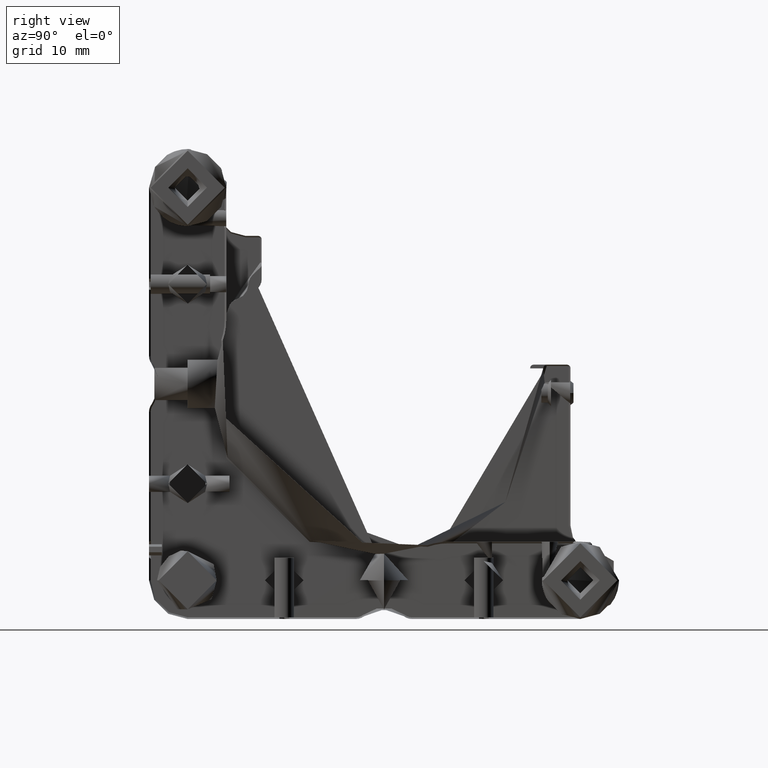
[diagram: clean part render]
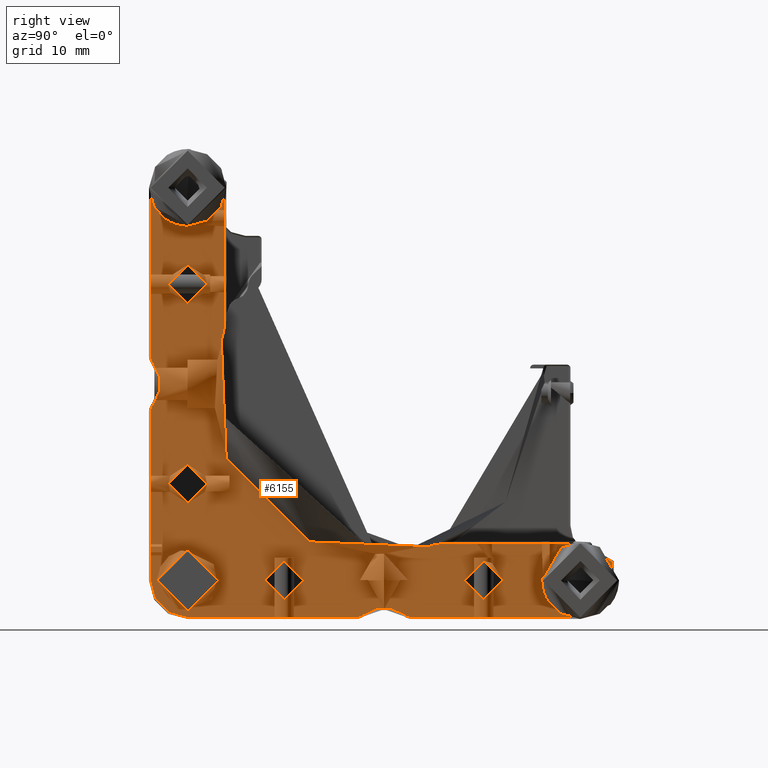
[diagram: same view with one face highlighted and labeled with its STEP entity id]
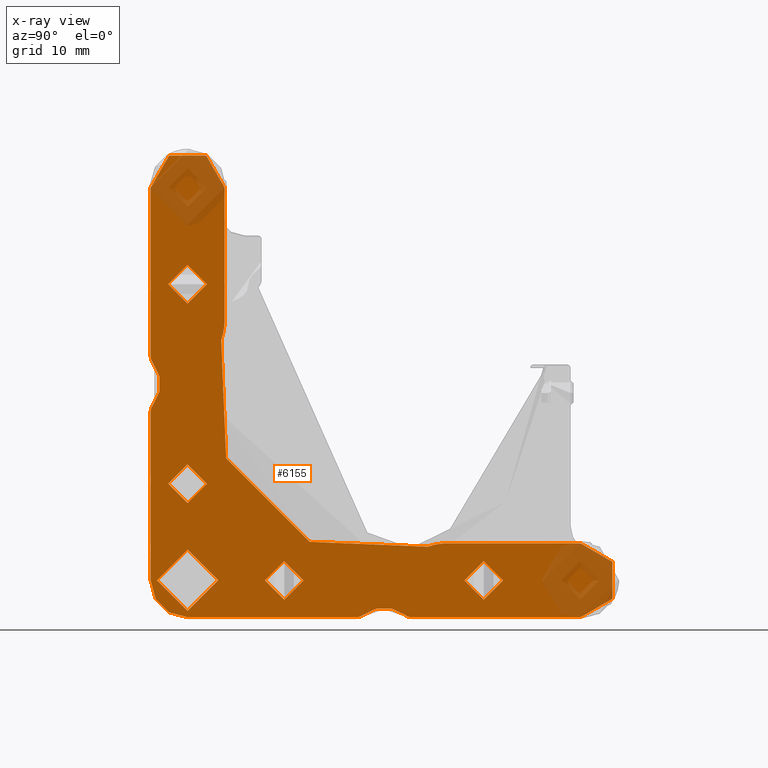
[diagram: x-ray of the same camera — body ghosted, the highlighted face saturated]
A machine part, right view. The second image highlights one B-rep face of the part: STEP entity #6155.
The next image is the same camera in x-ray: the body ghosted, the highlighted face saturated — about 11% of this face is hidden behind the body in this view.
In plain terms, the highlighted planar face has unit normal (1, -0, 0).
Its self-contained STEP definition (entity closure, byte-faithful):
#3 = LINE ( 'NONE', #9971, #5030 ) ;
#27 = CARTESIAN_POINT ( 'NONE',  ( 14.52438067708580149, -32.42127100858853339, 87.25000000000004263 ) ) ;
#100 = CARTESIAN_POINT ( 'NONE',  ( 14.52438067708579972, -34.28089811722144731, 78.43816129198630449 ) ) ;
#116 = ORIENTED_EDGE ( 'NONE', *, *, #3316, .F. ) ;
#143 = DIRECTION ( 'NONE',  ( -1.000000000000000000, -0.000000000000000000, -0.000000000000000000 ) ) ;
#151 = CARTESIAN_POINT ( 'NONE',  ( 14.52438067708579794, 30.89624606253330086, 25.93028193245020319 ) ) ;
#162 = EDGE_CURVE ( 'NONE', #552, #13583, #11069, .T. ) ;
#170 = CARTESIAN_POINT ( 'NONE',  ( 14.52438067708580327, -34.28212187281282297, 86.56348452869345067 ) ) ;
#173 = CARTESIAN_POINT ( 'NONE',  ( 14.52438067707362279, -37.56707137691365972, 21.50000000000000000 ) ) ;
#207 = AXIS2_PLACEMENT_3D ( 'NONE', #10750, #5321, #896 ) ;
#211 = CARTESIAN_POINT ( 'NONE',  ( 14.52438067708579972, -30.03133016282161094, 78.09840876550269684 ) ) ;
#221 = DIRECTION ( 'NONE',  ( 0.000000000000000000, 1.000000000000000000, 0.000000000000000000 ) ) ;
#230 = CARTESIAN_POINT ( 'NONE',  ( 14.52438067708580327, 32.42588830467631311, 18.02541900290477628 ) ) ;
#249 = CARTESIAN_POINT ( 'NONE',  ( 14.52438067708579972, -31.81707137695324761, 77.74999999999998579 ) ) ;
#283 = CARTESIAN_POINT ( 'NONE',  ( 14.52438067708579617, -29.81049284484125295, 78.19330020206459153 ) ) ;
#291 = CARTESIAN_POINT ( 'NONE',  ( 14.52438067708840563, 1.930523887229223190, 16.12500000004740031 ) ) ;
#297 = CARTESIAN_POINT ( 'NONE',  ( 14.52438067708579794, 29.78712825463695424, 16.75000000000000000 ) ) ;
#313 = CARTESIAN_POINT ( 'NONE',  ( 14.52438067708580149, -33.93277941437010981, 78.24185982432172182 ) ) ;
#324 = CARTESIAN_POINT ( 'NONE',  ( 14.52438067708579972, 24.79657562063133014, 19.67714565097782398 ) ) ;
#375 = CARTESIAN_POINT ( 'NONE',  ( 14.52438067705544356, -26.06707137693598497, 82.49999999999998579 ) ) ;
#393 = CARTESIAN_POINT ( 'NONE',  ( 14.52438067708580327, 24.78133738855267509, 19.71425878586192226 ) ) ;
#424 = VECTOR ( 'NONE', #1031, 1000.000000000000000 ) ;
#438 = CARTESIAN_POINT ( 'NONE',  ( 14.52438067708579794, 32.97086855717046205, 24.36724959734470630 ) ) ;
#466 = CARTESIAN_POINT ( 'NONE',  ( 14.52438067708579972, 27.41693395214842610, 25.90954639733917730 ) ) ;
#507 = CARTESIAN_POINT ( 'NONE',  ( 14.52438067708579794, 33.61321470231298036, 19.78669303848509742 ) ) ;
#535 = CARTESIAN_POINT ( 'NONE',  ( 14.52438067708579972, 29.18292862304677016, 26.24999999999999645 ) ) ;
#552 = VERTEX_POINT ( 'NONE', #573 ) ;
#573 = CARTESIAN_POINT ( 'NONE',  ( 14.52438067705688951, -37.56707137698212051, 47.66987298107795823 ) ) ;
#578 = VERTEX_POINT ( 'NONE', #13097 ) ;
#600 = CARTESIAN_POINT ( 'NONE',  ( 14.52438067708579794, 26.05581898533278107, 17.90964773134379584 ) ) ;
#673 = VERTEX_POINT ( 'NONE', #12849 ) ;
#721 = CARTESIAN_POINT ( 'NONE',  ( 14.52438067708580149, -30.13894796878306437, 86.94374374582075404 ) ) ;
#789 = CARTESIAN_POINT ( 'NONE',  ( 14.52438067708579972, -28.68996173924031368, 86.09035226865100299 ) ) ;
#829 = VERTEX_POINT ( 'NONE', #3343 ) ;
#893 = FACE_BOUND ( 'NONE', #3791, .T. ) ;
#896 = DIRECTION ( 'NONE',  ( 0.000000000000000000, 0.000000000000000000, 1.000000000000000000 ) ) ;
#924 = CARTESIAN_POINT ( 'NONE',  ( 14.52438067708579794, -29.70136333952453001, 86.75814017567357439 ) ) ;
#939 = CARTESIAN_POINT ( 'NONE',  ( 14.52438067708579972, 31.71362795205095964, 25.52053226614504666 ) ) ;
#963 = CARTESIAN_POINT ( 'NONE',  ( 14.52438067708579972, -1.317071376953222739, 52.00000000000001421 ) ) ;
#1010 = VERTEX_POINT ( 'NONE', #5151 ) ;
#1031 = DIRECTION ( 'NONE',  ( -0.000000000000000000, -1.000000000000000000, -0.000000000000000000 ) ) ;
#1059 = EDGE_LOOP ( 'NONE', ( #14114 ) ) ;
#1109 = DIRECTION ( 'NONE',  ( -1.000000000000000000, 0.000000000000000000, -0.000000000000000000 ) ) ;
#1162 = CARTESIAN_POINT ( 'NONE',  ( 14.52438067708579794, -33.60281259109380159, 86.90159123449259937 ) ) ;
#1182 = CIRCLE ( 'NONE', #10686, 9.749999999999971578 ) ;
#1237 = CARTESIAN_POINT ( 'NONE',  ( 14.52438067708579972, -33.71461188150238542, 78.14251044732405660 ) ) ;
#1272 = CARTESIAN_POINT ( 'NONE',  ( 14.52438067708579972, -28.94982177962471681, 78.71206006586373860 ) ) ;
#1289 = CARTESIAN_POINT ( 'NONE',  ( 14.52438067708579794, 33.56928162546453365, 23.32285434901667998 ) ) ;
#1290 = ORIENTED_EDGE ( 'NONE', *, *, #3420, .F. ) ;
#1306 = CARTESIAN_POINT ( 'NONE',  ( 14.52438067708580505, -33.00408763206149843, 87.13883147668222762 ) ) ;
#1348 = CARTESIAN_POINT ( 'NONE',  ( 14.52438067708579972, -31.21287174536507791, 77.74999999999998579 ) ) ;
#1365 = CARTESIAN_POINT ( 'NONE',  ( 14.52438067708580149, 31.00578297206387290, 17.11364699758141583 ) ) ;
#1382 = CARTESIAN_POINT ( 'NONE',  ( 14.52438067708580327, -36.07521155261447632, 84.61570803745036073 ) ) ;
#1391 = CARTESIAN_POINT ( 'NONE',  ( 14.52438067708579972, -31.81707137695323340, 36.50000000000002842 ) ) ;
#1395 = CARTESIAN_POINT ( 'NONE',  ( 14.52438067708579617, 26.85725568023501353, 17.35747229274185344 ) ) ;
#1435 = CARTESIAN_POINT ( 'NONE',  ( 14.52438067708579794, 33.93296232415456615, 21.19816371060814575 ) ) ;
#1450 = CARTESIAN_POINT ( 'NONE',  ( 14.52438067708579972, -33.82364990911344194, 86.80669979790981472 ) ) ;
#1451 = EDGE_CURVE ( 'NONE', #578, #7263, #3742, .T. ) ;
#1463 = CARTESIAN_POINT ( 'NONE',  ( 14.52438067708580327, 27.28538811848415335, 17.14251044733113005 ) ) ;
#1506 = CARTESIAN_POINT ( 'NONE',  ( 14.52438067708579972, 32.77328089169596126, 18.37289036228215622 ) ) ;
#1533 = CARTESIAN_POINT ( 'NONE',  ( 14.52438067708579972, 27.36007427402961412, 25.88635300241791271 ) ) ;
#1607 = CARTESIAN_POINT ( 'NONE',  ( 14.52438067708579972, 26.92487455903395599, 25.68439713548721670 ) ) ;
#1611 = AXIS2_PLACEMENT_3D ( 'NONE', #6083, #10494, #3692 ) ;
#1617 = EDGE_CURVE ( 'NONE', #2817, #1010, #1182, .T. ) ;
#1678 = CARTESIAN_POINT ( 'NONE',  ( 14.52438067708580505, 28.43600986276327447, 16.79168819624419129 ) ) ;
#1774 = CARTESIAN_POINT ( 'NONE',  ( 14.52438067708579972, -31.81707137695323340, 33.50000000000002842 ) ) ;
#1806 = CIRCLE ( 'NONE', #207, 1.749999999958617991 ) ;
#1845 = CARTESIAN_POINT ( 'NONE',  ( 14.52438067708579794, -32.11899282064854333, 77.74999999999997158 ) ) ;
#1857 = CARTESIAN_POINT ( 'NONE',  ( 14.52438067707362279, 29.18292862304677016, 15.75000000003957901 ) ) ;
#1929 = AXIS2_PLACEMENT_3D ( 'NONE', #3956, #4836, #9461 ) ;
#1940 = DIRECTION ( 'NONE',  ( 0.000000000000000000, 0.000000000000000000, -1.000000000000000000 ) ) ;
#1941 = CARTESIAN_POINT ( 'NONE',  ( 14.52438067708579972, -27.88522062387327338, 85.16634424495082101 ) ) ;
#1990 = EDGE_CURVE ( 'NONE', #3206, #2986, #10413, .T. ) ;
#2003 = CARTESIAN_POINT ( 'NONE',  ( 14.52438067708579972, -27.45391075917729395, 84.37834584250344960 ) ) ;
#2020 = CARTESIAN_POINT ( 'NONE',  ( 14.52438067708579972, 29.18292862304677016, 26.24999999999999645 ) ) ;
#2044 = FACE_BOUND ( 'NONE', #7885, .T. ) ;
#2087 = CARTESIAN_POINT ( 'NONE',  ( 14.52438067708579972, 32.31003826075249918, 25.09035226866025070 ) ) ;
#2119 = ORIENTED_EDGE ( 'NONE', *, *, #7242, .F. ) ;
#2125 = CARTESIAN_POINT ( 'NONE',  ( 14.52438067708579972, -31.81707137695321563, 67.50000000000000000 ) ) ;
#2140 = CARTESIAN_POINT ( 'NONE',  ( 14.52438067708579794, -30.19180061613907995, 86.96361077684336749 ) ) ;
#2156 = CARTESIAN_POINT ( 'NONE',  ( 14.52438067708579794, 30.86105203121832119, 25.94374374582072917 ) ) ;
#2191 = DIRECTION ( 'NONE',  ( -1.000000000000000000, -0.000000000000000000, -0.000000000000000000 ) ) ;
#2239 = CARTESIAN_POINT ( 'NONE',  ( 14.52438067708580149, -35.40742364557986832, 85.62710963773415074 ) ) ;
#2275 = VECTOR ( 'NONE', #1940, 1000.000000000000000 ) ;
#2319 = CARTESIAN_POINT ( 'NONE',  ( 14.52438067708579794, -34.55234201830454310, 86.38427090779181583 ) ) ;
#2358 = CARTESIAN_POINT ( 'NONE',  ( 14.52438067708579972, -29.08180073562697032, 78.61572909218776317 ) ) ;
#2394 = CARTESIAN_POINT ( 'NONE',  ( 14.52438067708579972, -36.12377117487879019, 80.49342146786669616 ) ) ;
#2422 = EDGE_CURVE ( 'NONE', #7997, #11886, #7926, .T. ) ;
#2431 = CARTESIAN_POINT ( 'NONE',  ( 14.52438067708580149, -27.38678529768677805, 80.78669303848539585 ) ) ;
#2446 = CARTESIAN_POINT ( 'NONE',  ( 14.52438067708580149, 33.24476733105664294, 19.03617325972458829 ) ) ;
#2462 = CARTESIAN_POINT ( 'NONE',  ( 14.52438067708580327, -36.18023199472888507, 80.62165415749467456 ) ) ;
#2541 = CARTESIAN_POINT ( 'NONE',  ( 14.52438067708580149, -36.17456092961947434, 84.39754050456825496 ) ) ;
#2552 = CARTESIAN_POINT ( 'NONE',  ( 14.52438067708580149, 25.59257635438952150, 24.62710963770978623 ) ) ;
#2594 = CARTESIAN_POINT ( 'NONE',  ( 14.52438067708580149, 31.18950715517917160, 17.19330020207301146 ) ) ;
#2615 = CIRCLE ( 'NONE', #4248, 2.999999999999988898 ) ;
#2622 = CARTESIAN_POINT ( 'NONE',  ( 14.52438067708579972, 27.55765786222923097, 17.03638922315664317 ) ) ;
#2653 = ORIENTED_EDGE ( 'NONE', *, *, #6210, .F. ) ;
#2686 = CARTESIAN_POINT ( 'NONE',  ( 14.52438067708580149, 26.31567902570001749, 25.28793993412090657 ) ) ;
#2749 = ORIENTED_EDGE ( 'NONE', *, *, #4464, .F. ) ;
#2768 = CARTESIAN_POINT ( 'NONE',  ( 14.52438067708580682, 24.43289492193700241, 21.80183628938485185 ) ) ;
#2817 = VERTEX_POINT ( 'NONE', #11184 ) ;
#2836 = CARTESIAN_POINT ( 'NONE',  ( 14.52438067708580505, 25.29865771524616491, 18.76472935866166125 ) ) ;
#2844 = AXIS2_PLACEMENT_3D ( 'NONE', #9138, #4651, #3629 ) ;
#2877 = DIRECTION ( 'NONE',  ( 1.000000000000000000, 1.445602896658512392E-16, 0.000000000000000000 ) ) ;
#2946 = AXIS2_PLACEMENT_3D ( 'NONE', #10043, #143, #12297 ) ;
#2952 = CARTESIAN_POINT ( 'NONE',  ( 14.52438067708580149, -29.49139843415073514, 86.64252770726422170 ) ) ;
#2986 = VERTEX_POINT ( 'NONE', #7935 ) ;
#3012 = AXIS2_PLACEMENT_3D ( 'NONE', #13983, #6441, #9690 ) ;
#3152 = EDGE_CURVE ( 'NONE', #10986, #6572, #11421, .T. ) ;
#3162 = CARTESIAN_POINT ( 'NONE',  ( 14.52438067708579972, -27.51037157902715435, 84.50657853213010640 ) ) ;
#3174 = CIRCLE ( 'NONE', #2946, 4.749999999999997335 ) ;
#3183 = CARTESIAN_POINT ( 'NONE',  ( 14.52438067708580327, 32.05636294992711299, 25.29651432686275214 ) ) ;
#3206 = VERTEX_POINT ( 'NONE', #249 ) ;
#3257 = EDGE_CURVE ( 'NONE', #10377, #829, #8410, .T. ) ;
#3316 = EDGE_CURVE ( 'NONE', #2986, #3206, #5712, .T. ) ;
#3342 = CARTESIAN_POINT ( 'NONE',  ( 14.52438067708579617, -36.52544215765119162, 83.24676974023832088 ) ) ;
#3343 = CARTESIAN_POINT ( 'NONE',  ( 14.52438067711825020, -4.564666641156946980, 16.12500000003830891 ) ) ;
#3353 = CARTESIAN_POINT ( 'NONE',  ( 14.52438067703979030, -37.19207137701416599, 48.75240473582032052 ) ) ;
#3369 = CARTESIAN_POINT ( 'NONE',  ( 14.52438067699597291, -35.81707137695322274, 56.33012701892233309 ) ) ;
#3376 = CARTESIAN_POINT ( 'NONE',  ( 14.52438067708580149, -29.93872553446033535, 78.13683938221862491 ) ) ;
#3420 = EDGE_CURVE ( 'NONE', #829, #9115, #11879, .T. ) ;
#3458 = ORIENTED_EDGE ( 'NONE', *, *, #7592, .F. ) ;
#3487 = CARTESIAN_POINT ( 'NONE',  ( 14.52438067708579794, -36.56700397473369435, 81.89632742121600018 ) ) ;
#3545 = CARTESIAN_POINT ( 'NONE',  ( 14.52438067708579794, 33.44106879871741711, 19.38429196256871023 ) ) ;
#3561 = CARTESIAN_POINT ( 'NONE',  ( 14.52438067708580327, -34.69050570382738385, 78.70348567312998966 ) ) ;
#3596 = CIRCLE ( 'NONE', #11698, 25.25000000000002842 ) ;
#3627 = CARTESIAN_POINT ( 'NONE',  ( 14.52438067708580149, -35.06003105859409175, 85.97458099708710222 ) ) ;
#3629 = DIRECTION ( 'NONE',  ( 0.000000000000000000, -1.982541115413988545E-15, 1.000000000000000000 ) ) ;
#3640 = CARTESIAN_POINT ( 'NONE',  ( 14.52438067708580505, 24.99853148756893972, 19.24194593596821079 ) ) ;
#3688 = EDGE_CURVE ( 'NONE', #13583, #8493, #10480, .T. ) ;
#3690 = CARTESIAN_POINT ( 'NONE',  ( 14.52438067708579794, 33.89129940374123606, 20.75323025976187807 ) ) ;
#3692 = DIRECTION ( 'NONE',  ( 0.000000000000000000, 0.000000000000000000, 1.000000000000000000 ) ) ;
#3701 = DIRECTION ( 'NONE',  ( -1.000000000000000000, -0.000000000000000000, -0.000000000000000000 ) ) ;
#3705 = EDGE_CURVE ( 'NONE', #10329, #10329, #2615, .T. ) ;
#3718 = CARTESIAN_POINT ( 'NONE',  ( 14.52438067708579794, 26.71787812720821975, 25.56348452870508581 ) ) ;
#3722 = ORIENTED_EDGE ( 'NONE', *, *, #11668, .F. ) ;
#3742 = CIRCLE ( 'NONE', #10446, 1.750000000123458355 ) ;
#3761 = CARTESIAN_POINT ( 'NONE',  ( 14.52438067708580149, 33.54041817571836503, 19.60245949544263411 ) ) ;
#3790 = CARTESIAN_POINT ( 'NONE',  ( 14.52438067708579794, 28.57872899144322076, 26.24999999999999645 ) ) ;
#3791 = EDGE_LOOP ( 'NONE', ( #7070 ) ) ;
#3854 = CARTESIAN_POINT ( 'NONE',  ( 14.52438067708579794, 27.45311508189583449, 17.07612996028124641 ) ) ;
#3879 = ORIENTED_EDGE ( 'NONE', *, *, #14152, .F. ) ;
#3894 = CARTESIAN_POINT ( 'NONE',  ( 14.52438067707362279, -31.81707137695323340, 15.75000000003957901 ) ) ;
#3928 = CARTESIAN_POINT ( 'NONE',  ( 14.52438067708579972, 24.75264254378031481, 23.21330696151403217 ) ) ;
#3956 = CARTESIAN_POINT ( 'NONE',  ( 14.52438067713278613, -1.317071376953229622, 11.99999999999999645 ) ) ;
#3977 = LINE ( 'NONE', #8395, #2275 ) ;
#4019 = ORIENTED_EDGE ( 'NONE', *, *, #7503, .F. ) ;
#4044 = CARTESIAN_POINT ( 'NONE',  ( 14.52438067708580149, -30.56478756637726946, 87.08672123137698406 ) ) ;
#4076 = ORIENTED_EDGE ( 'NONE', *, *, #1990, .F. ) ;
#4180 = DIRECTION ( 'NONE',  ( 0.000000000000000000, -1.000000000000000000, -6.049292121355037168E-15 ) ) ;
#4184 = CARTESIAN_POINT ( 'NONE',  ( 14.52438067708580327, -27.17830738036344229, 83.68718665219553543 ) ) ;
#4187 = ORIENTED_EDGE ( 'NONE', *, *, #8363, .F. ) ;
#4248 = AXIS2_PLACEMENT_3D ( 'NONE', #2125, #2191, #6559 ) ;
#4269 = CARTESIAN_POINT ( 'NONE',  ( 14.52438067708579972, -37.56707137695320853, 52.00000000000001421 ) ) ;
#4307 = CARTESIAN_POINT ( 'NONE',  ( 14.52438067708579972, -31.81707137695323340, 16.75000000000000355 ) ) ;
#4366 = ORIENTED_EDGE ( 'NONE', *, *, #2422, .F. ) ;
#4413 = ORIENTED_EDGE ( 'NONE', *, *, #3257, .F. ) ;
#4464 = EDGE_CURVE ( 'NONE', #1010, #10986, #3596, .T. ) ;
#4468 = CARTESIAN_POINT ( 'NONE',  ( 14.52438067708579972, -27.67454366969468182, 80.17432705718891839 ) ) ;
#4474 = LINE ( 'NONE', #8892, #6647 ) ;
#4503 = CARTESIAN_POINT ( 'NONE',  ( 14.52438067708579972, -36.21866261144872823, 80.71425878586443048 ) ) ;
#4554 = CARTESIAN_POINT ( 'NONE',  ( 14.52438067708580149, 31.08046912760659453, 25.85748955267051841 ) ) ;
#4575 = CARTESIAN_POINT ( 'NONE',  ( 14.52438067708580149, -33.69541721947427959, 86.86316061776645370 ) ) ;
#4600 = DIRECTION ( 'NONE',  ( 1.000000000000000000, -0.000000000000000000, -0.000000000000000000 ) ) ;
#4632 = CARTESIAN_POINT ( 'NONE',  ( 14.52438067708580682, 32.65750962014806191, 24.74295968162402914 ) ) ;
#4648 = CARTESIAN_POINT ( 'NONE',  ( 14.52438067708579972, -31.81707137695324761, 87.25000000000001421 ) ) ;
#4651 = DIRECTION ( 'NONE',  ( 1.000000000000000000, -0.000000000000000000, -0.000000000000000000 ) ) ;
#4692 = CARTESIAN_POINT ( 'NONE',  ( 14.52438067708579794, -29.55901731296790658, 78.31560286449906982 ) ) ;
#4725 = CARTESIAN_POINT ( 'NONE',  ( 14.52438067708580149, -36.00146851244107182, 80.24194593598626568 ) ) ;
#4736 = CARTESIAN_POINT ( 'NONE',  ( 14.52438067708580149, 24.54416462645695773, 20.31281334779421499 ) ) ;
#4806 = CARTESIAN_POINT ( 'NONE',  ( 14.52438067708579972, 25.38641429618801482, 24.37343432688538414 ) ) ;
#4836 = DIRECTION ( 'NONE',  ( -1.000000000000000000, -1.652117596189711159E-16, 0.000000000000000000 ) ) ;
#4853 = CARTESIAN_POINT ( 'NONE',  ( 14.52438067708580149, 31.06127446555159111, 17.13683938222352054 ) ) ;
#4883 = CARTESIAN_POINT ( 'NONE',  ( 14.52438067708579972, 27.46961118355992681, 17.06971806754978260 ) ) ;
#4924 = CARTESIAN_POINT ( 'NONE',  ( 14.52438067708580327, 33.24641315175153267, 23.96505049583747393 ) ) ;
#5010 = CARTESIAN_POINT ( 'NONE',  ( 14.52438067708580505, 24.59616315896323258, 22.75217204554352435 ) ) ;
#5030 = VECTOR ( 'NONE', #221, 1000.000000000000000 ) ;
#5134 = CARTESIAN_POINT ( 'NONE',  ( 14.52438067708580149, -31.51514993325796965, 87.25000000000002842 ) ) ;
#5151 = CARTESIAN_POINT ( 'NONE',  ( 14.52438067708580149, 5.489158803556597022, 26.72071428571425855 ) ) ;
#5162 = ORIENTED_EDGE ( 'NONE', *, *, #9714, .F. ) ;
#5181 = CARTESIAN_POINT ( 'NONE',  ( 14.52438067708579972, -32.56399013722237612, 77.79168819624418063 ) ) ;
#5201 = CARTESIAN_POINT ( 'NONE',  ( 14.52438067708579972, -28.34249037985554764, 85.74295968162866188 ) ) ;
#5269 = CARTESIAN_POINT ( 'NONE',  ( 14.52438067708580149, -29.91953087239735254, 86.85748955267328597 ) ) ;
#5281 = CIRCLE ( 'NONE', #13388, 2.999999999999985345 ) ;
#5317 = FACE_OUTER_BOUND ( 'NONE', #9999, .T. ) ;
#5321 = DIRECTION ( 'NONE',  ( 1.000000000000000000, -0.000000000000000000, -0.000000000000000000 ) ) ;
#5374 = AXIS2_PLACEMENT_3D ( 'NONE', #8249, #2877, #9546 ) ;
#5388 = DIRECTION ( 'NONE',  ( 0.000000000000000000, 0.000000000000000000, -1.000000000000000000 ) ) ;
#5462 = CARTESIAN_POINT ( 'NONE',  ( 14.52438067708579972, 14.18292862304677016, 18.50000000000001776 ) ) ;
#5488 = AXIS2_PLACEMENT_3D ( 'NONE', #1391, #11325, #7265 ) ;
#5520 = ORIENTED_EDGE ( 'NONE', *, *, #3152, .F. ) ;
#5554 = CARTESIAN_POINT ( 'NONE',  ( 14.52438067708579794, -27.75523266894547447, 80.03617325972037122 ) ) ;
#5575 = ORIENTED_EDGE ( 'NONE', *, *, #1451, .F. ) ;
#5615 = CARTESIAN_POINT ( 'NONE',  ( 14.52438067708369296, -5.647198395875414612, 15.75000000002070522 ) ) ;
#5640 = DIRECTION ( 'NONE',  ( 0.000000000000000000, 0.000000000000000000, -1.000000000000000000 ) ) ;
#5645 = CARTESIAN_POINT ( 'NONE',  ( 14.52438067708580327, 30.68444533735655000, 26.00768735933069564 ) ) ;
#5662 = CARTESIAN_POINT ( 'NONE',  ( 14.52438067708579794, -35.74892213003340657, 79.83365575505035849 ) ) ;
#5697 = CARTESIAN_POINT ( 'NONE',  ( 14.52438067708579794, -29.15072713199553078, 78.56814924692355362 ) ) ;
#5712 = B_SPLINE_CURVE_WITH_KNOTS ( 'NONE', 3,
 ( #10637, #5134, #9755, #4044, #10706, #2140, #721, #8466, #12887, #5269, #924, #2952, #7385, #7525, #6299, #789, #5201, #8676, #13100, #11868, #1941, #11936, #9613, #3162, #2003, #6370, #10774, #9688, #4184, #8610, #6439, #10848, #14199, #7587, #9892, #10185, #2431, #7955, #13391, #12364, #4468, #5554, #12436, #9962, #11278, #6643, #11055, #1272, #2358, #5697, #6864, #4692, #283, #3376, #8021, #211, #5779, #9109, #1348, #8887 ),
 .UNSPECIFIED., .F., .F.,
 ( 4, 1, 1, 1, 1, 2, 2, 1, 2, 2, 2, 1, 2, 2, 1, 1, 1, 2, 2, 2, 1, 1, 1, 1, 2, 2, 1, 2, 2, 2, 1, 2, 2, 1, 1, 1, 2, 2, 4 ),
 ( 0.000000000000000000, 0.06250000000000759115, 0.09375000000001101896, 0.1093750000000123374, 0.1171875000000121847, 0.1210937500000122680, 0.1250000000000123512, 0.1562500000000104083, 0.1718750000000087985, 0.1875000000000071887, 0.2500000000000009992, 0.2812499999999991118, 0.2968749999999980016, 0.3124999999999968359, 0.3437499999999922284, 0.3593749999999900635, 0.3671874999999903411, 0.3710937499999916178, 0.3749999999999928391, 0.5000000000000076605, 0.5625000000000165423, 0.5937500000000196509, 0.6093750000000198730, 0.6171875000000198730, 0.6210937500000197620, 0.6250000000000197620, 0.6562500000000158762, 0.6718750000000128786, 0.6875000000000098810, 0.7500000000000049960, 0.7812500000000026645, 0.7968750000000016653, 0.8125000000000006661, 0.8437500000000002220, 0.8593749999999993339, 0.8671874999999995559, 0.8710937500000001110, 0.8750000000000006661, 1.000000000000000000 ),
 .UNSPECIFIED. ) ;
#5735 = CARTESIAN_POINT ( 'NONE',  ( 14.52438067708579794, -33.49519478512343795, 78.05625625417920332 ) ) ;
#5744 = CARTESIAN_POINT ( 'NONE',  ( 14.52438067708579972, 29.18292862304677016, 16.75000000000000000 ) ) ;
#5779 = CARTESIAN_POINT ( 'NONE',  ( 14.52438067708579972, -30.05107670605443104, 78.09045360266081559 ) ) ;
#5808 = CARTESIAN_POINT ( 'NONE',  ( 14.52438067708580327, -35.95959908420774553, 84.82567294281945181 ) ) ;
#5821 = CARTESIAN_POINT ( 'NONE',  ( 14.52438067708579972, 24.81976800527551319, 19.62165415748677333 ) ) ;
#5882 = DIRECTION ( 'NONE',  ( 1.000000000000000000, -0.000000000000000000, -0.000000000000000000 ) ) ;
#5891 = CARTESIAN_POINT ( 'NONE',  ( 14.52438067708579972, 26.65222929404588470, 17.47946773385269026 ) ) ;
#5933 = CARTESIAN_POINT ( 'NONE',  ( 14.52438067708580327, 33.93286122083116396, 22.10367257878372271 ) ) ;
#5962 = CARTESIAN_POINT ( 'NONE',  ( 14.52438067708579972, 29.18292862304677016, 16.75000000000000000 ) ) ;
#6008 = CARTESIAN_POINT ( 'NONE',  ( 14.52438067708579794, 32.82149889345348015, 24.56117267460787801 ) ) ;
#6032 = CARTESIAN_POINT ( 'NONE',  ( 14.52438067708579794, 24.73917678106099416, 23.17810295117763886 ) ) ;
#6083 = CARTESIAN_POINT ( 'NONE',  ( 14.52438067707362279, 29.18292862304677016, 21.50000000000000000 ) ) ;
#6107 = CARTESIAN_POINT ( 'NONE',  ( 14.52438067708579972, 24.67521546130390320, 23.00145151803649668 ) ) ;
#6144 = ORIENTED_EDGE ( 'NONE', *, *, #8476, .F. ) ;
#6155 = ADVANCED_FACE ( 'NONE', ( #2044, #11975, #6480, #6339, #10815, #8502, #893, #5317 ), #9799, .F. ) ;
#6210 = EDGE_CURVE ( 'NONE', #10709, #11298, #6269, .T. ) ;
#6269 = LINE ( 'NONE', #7429, #9412 ) ;
#6299 = CARTESIAN_POINT ( 'NONE',  ( 14.52438067708579972, -28.94363705007794252, 86.29651432686566181 ) ) ;
#6337 = CARTESIAN_POINT ( 'NONE',  ( 14.52438067705916325, -37.19207137696697174, 55.24759526420253763 ) ) ;
#6339 = FACE_BOUND ( 'NONE', #1059, .T. ) ;
#6348 = CARTESIAN_POINT ( 'NONE',  ( 14.52438067708580327, -33.44234213776744014, 78.03638922315664672 ) ) ;
#6370 = CARTESIAN_POINT ( 'NONE',  ( 14.52438067708579972, -27.43071837453498318, 84.32285434901629628 ) ) ;
#6439 = CARTESIAN_POINT ( 'NONE',  ( 14.52438067708579972, -27.06703767584346210, 82.19816371061054383 ) ) ;
#6441 = DIRECTION ( 'NONE',  ( 1.000000000000000000, -0.000000000000000000, -0.000000000000000000 ) ) ;
#6444 = AXIS2_PLACEMENT_3D ( 'NONE', #6894, #3701, #8126 ) ;
#6480 = FACE_BOUND ( 'NONE', #8882, .T. ) ;
#6482 = CIRCLE ( 'NONE', #8793, 5.250000000003584688 ) ;
#6540 = ORIENTED_EDGE ( 'NONE', *, *, #11958, .F. ) ;
#6548 = LINE ( 'NONE', #10957, #424 ) ;
#6559 = DIRECTION ( 'NONE',  ( 0.000000000000000000, 0.000000000000000000, -1.000000000000000000 ) ) ;
#6572 = VERTEX_POINT ( 'NONE', #14080 ) ;
#6630 = VERTEX_POINT ( 'NONE', #5462 ) ;
#6643 = CARTESIAN_POINT ( 'NONE',  ( 14.52438067708580149, -28.57411169534098505, 79.02541900288959198 ) ) ;
#6647 = VECTOR ( 'NONE', #12569, 1000.000000000000000 ) ;
#6682 = CARTESIAN_POINT ( 'NONE',  ( 14.52438067708580149, -33.53038881643909974, 78.06971806754978616 ) ) ;
#6756 = CARTESIAN_POINT ( 'NONE',  ( 14.52438067708579794, -35.60501131107137951, 79.63275040265047267 ) ) ;
#6794 = CARTESIAN_POINT ( 'NONE',  ( 14.52438067708579972, -31.81707137695321563, 64.50000000000001421 ) ) ;
#6812 = CARTESIAN_POINT ( 'NONE',  ( 14.52438067708580149, 33.76969408712771070, 20.24782795444725636 ) ) ;
#6824 = CARTESIAN_POINT ( 'NONE',  ( 14.52438067707062253, -37.56707137696837862, 82.49999999999998579 ) ) ;
#6828 = CARTESIAN_POINT ( 'NONE',  ( 14.52438067708580327, -35.87891008495842016, 84.96382674028494364 ) ) ;
#6845 = EDGE_LOOP ( 'NONE', ( #3458 ) ) ;
#6864 = CARTESIAN_POINT ( 'NONE',  ( 14.52438067708580327, -29.35202088113040730, 78.43651547128705204 ) ) ;
#6880 = CARTESIAN_POINT ( 'NONE',  ( 14.52438067708579972, 32.24410129766432220, 17.86142972960387354 ) ) ;
#6894 = CARTESIAN_POINT ( 'NONE',  ( 14.52438067708579972, -16.81707137695321563, 21.50000000000000000 ) ) ;
#6901 = CARTESIAN_POINT ( 'NONE',  ( 14.52438067708579794, -36.45583537354306003, 81.31281334780958048 ) ) ;
#6956 = CARTESIAN_POINT ( 'NONE',  ( 14.52438067708579972, 33.69064178478812721, 19.99854848195814583 ) ) ;
#6971 = CARTESIAN_POINT ( 'NONE',  ( 14.52438067708579794, -34.48341562189258980, 86.43185075308615239 ) ) ;
#6973 = DIRECTION ( 'NONE',  ( 0.000000000000000000, -7.116814260417684290E-15, 1.000000000000000000 ) ) ;
#6984 = CARTESIAN_POINT ( 'NONE',  ( 14.52438067708579972, 25.93996894142125598, 24.97458099709925960 ) ) ;
#6998 = VECTOR ( 'NONE', #5640, 1000.000000000000000 ) ;
#7025 = CARTESIAN_POINT ( 'NONE',  ( 14.52438067708580505, 31.91819926438819977, 17.61572909220108940 ) ) ;
#7050 = CARTESIAN_POINT ( 'NONE',  ( 14.52438067708579794, 27.17635009091416975, 25.80669979792508784 ) ) ;
#7070 = ORIENTED_EDGE ( 'NONE', *, *, #3705, .F. ) ;
#7086 = CARTESIAN_POINT ( 'NONE',  ( 14.52438067708580149, 8.657901150486123854, 17.49999999999999645 ) ) ;
#7116 = CARTESIAN_POINT ( 'NONE',  ( 14.52438067708580327, 25.25107786996376191, 18.83365575505555256 ) ) ;
#7191 = CARTESIAN_POINT ( 'NONE',  ( 14.52438067708579794, 25.39498868892875549, 18.63275040265251903 ) ) ;
#7235 = ORIENTED_EDGE ( 'NONE', *, *, #12923, .F. ) ;
#7242 = EDGE_CURVE ( 'NONE', #6572, #7997, #4474, .T. ) ;
#7263 = VERTEX_POINT ( 'NONE', #6337 ) ;
#7265 = DIRECTION ( 'NONE',  ( 0.000000000000000000, 0.000000000000000000, -1.000000000000000000 ) ) ;
#7268 = CARTESIAN_POINT ( 'NONE',  ( 14.52438067708579972, 27.06722058560628952, 17.24185982433412434 ) ) ;
#7385 = CARTESIAN_POINT ( 'NONE',  ( 14.52438067708579794, -29.35324463667909711, 86.56183870801132230 ) ) ;
#7429 = CARTESIAN_POINT ( 'NONE',  ( 14.52438067708579972, -1.317071376953222739, 15.75000000000003553 ) ) ;
#7503 = EDGE_CURVE ( 'NONE', #7605, #2817, #6548, .T. ) ;
#7525 = CARTESIAN_POINT ( 'NONE',  ( 14.52438067708579794, -29.28637204794777915, 86.52053226614428638 ) ) ;
#7545 = CARTESIAN_POINT ( 'NONE',  ( 14.52438067708579794, -26.59635709123896774, 58.80623018050977180 ) ) ;
#7587 = CARTESIAN_POINT ( 'NONE',  ( 14.52438067708580149, -27.30935821521037710, 80.99854848195998613 ) ) ;
#7592 = EDGE_CURVE ( 'NONE', #11708, #11708, #8509, .T. ) ;
#7605 = VERTEX_POINT ( 'NONE', #13929 ) ;
#7607 = CARTESIAN_POINT ( 'NONE',  ( 14.52438067708580149, 31.50860156585466498, 25.64252770726042385 ) ) ;
#7643 = CARTESIAN_POINT ( 'NONE',  ( 14.52438067707362279, -31.81707137695323340, 21.50000000000000000 ) ) ;
#7712 = VERTEX_POINT ( 'NONE', #4307 ) ;
#7733 = CARTESIAN_POINT ( 'NONE',  ( 14.52438067708579972, 14.18292862304677016, 21.50000000000000000 ) ) ;
#7798 = CARTESIAN_POINT ( 'NONE',  ( 14.52438067705160307, -41.31707137695322984, 52.00000000000013500 ) ) ;
#7815 = CARTESIAN_POINT ( 'NONE',  ( 14.52438067708580149, 29.92984738332577876, 26.20831180375581226 ) ) ;
#7847 = CARTESIAN_POINT ( 'NONE',  ( 14.52438067710017400, 3.013055641968950038, 15.75000000001440803 ) ) ;
#7885 = EDGE_LOOP ( 'NONE', ( #7235, #3722 ) ) ;
#7914 = CARTESIAN_POINT ( 'NONE',  ( 14.52438067708579972, -36.56710507806302957, 82.80183628939198570 ) ) ;
#7926 = CIRCLE ( 'NONE', #5374, 5.750000000034560799 ) ;
#7935 = CARTESIAN_POINT ( 'NONE',  ( 14.52438067708579972, -31.81707137695324761, 87.25000000000001421 ) ) ;
#7955 = CARTESIAN_POINT ( 'NONE',  ( 14.52438067708579972, -27.39320133723454020, 80.77018645884902526 ) ) ;
#7985 = CARTESIAN_POINT ( 'NONE',  ( 14.52438067708580327, -35.29165237405048572, 79.25704031837243235 ) ) ;
#7997 = VERTEX_POINT ( 'NONE', #375 ) ;
#8021 = CARTESIAN_POINT ( 'NONE',  ( 14.52438067708579972, -29.99421702794332489, 78.11364699757845642 ) ) ;
#8055 = CARTESIAN_POINT ( 'NONE',  ( 14.52438067708579794, -35.83760364309758728, 85.03069932900619676 ) ) ;
#8070 = CARTESIAN_POINT ( 'NONE',  ( 14.52438067708580149, 24.92478844737654242, 23.61570803743424918 ) ) ;
#8115 = CARTESIAN_POINT ( 'NONE',  ( 14.52438067708580327, 31.84927286799672075, 17.56814924692039526 ) ) ;
#8126 = DIRECTION ( 'NONE',  ( 0.000000000000000000, 0.000000000000000000, -1.000000000000000000 ) ) ;
#8142 = CARTESIAN_POINT ( 'NONE',  ( 14.52438067708580149, 25.70834762594962797, 18.25704031837395647 ) ) ;
#8185 = CARTESIAN_POINT ( 'NONE',  ( 14.52438067708579972, 33.20346088919155392, 18.96930067099578565 ) ) ;
#8192 = ORIENTED_EDGE ( 'NONE', *, *, #3688, .F. ) ;
#8210 = CARTESIAN_POINT ( 'NONE',  ( 14.52438067708579972, 24.71930402348262135, 23.12523583424152562 ) ) ;
#8215 = ORIENTED_EDGE ( 'NONE', *, *, #14231, .F. ) ;
#8249 = CARTESIAN_POINT ( 'NONE',  ( 14.52438067705544356, -31.81707137695322629, 82.49999999999998579 ) ) ;
#8277 = CARTESIAN_POINT ( 'NONE',  ( 14.52438067708580505, 26.71910188276674702, 17.43816129199251108 ) ) ;
#8305 = EDGE_CURVE ( 'NONE', #6630, #6630, #5281, .T. ) ;
#8350 = CARTESIAN_POINT ( 'NONE',  ( 14.52438067708579972, 24.75905858332833276, 23.22981354115137265 ) ) ;
#8363 = EDGE_CURVE ( 'NONE', #8493, #10377, #3, .T. ) ;
#8395 = CARTESIAN_POINT ( 'NONE',  ( 14.52438067708579972, -37.56707137695320853, 52.00000000000001421 ) ) ;
#8410 = CIRCLE ( 'NONE', #2844, 1.749999999989475308 ) ;
#8438 = DIRECTION ( 'NONE',  ( 0.000000000000000000, 1.000000000000000000, 0.000000000000000000 ) ) ;
#8466 = CARTESIAN_POINT ( 'NONE',  ( 14.52438067708579972, -30.10375393746742390, 86.93028193245022806 ) ) ;
#8476 = EDGE_CURVE ( 'NONE', #7712, #7712, #3174, .T. ) ;
#8493 = VERTEX_POINT ( 'NONE', #3894 ) ;
#8502 = FACE_BOUND ( 'NONE', #6845, .T. ) ;
#8509 = CIRCLE ( 'NONE', #5488, 2.999999999999995559 ) ;
#8557 = ORIENTED_EDGE ( 'NONE', *, *, #1617, .F. ) ;
#8610 = CARTESIAN_POINT ( 'NONE',  ( 14.52438067708580149, -27.06713877917281863, 83.10367257877885550 ) ) ;
#8676 = CARTESIAN_POINT ( 'NONE',  ( 14.52438067708579972, -28.17850110655281171, 85.56117267461601728 ) ) ;
#8793 = AXIS2_PLACEMENT_3D ( 'NONE', #7798, #14337, #11056 ) ;
#8882 = EDGE_LOOP ( 'NONE', ( #6144 ) ) ;
#8887 = CARTESIAN_POINT ( 'NONE',  ( 14.52438067708579972, -31.81707137695324761, 77.74999999999998579 ) ) ;
#8892 = CARTESIAN_POINT ( 'NONE',  ( 14.52438067708579972, -26.06707137695328313, 52.00000000000001421 ) ) ;
#8922 = CARTESIAN_POINT ( 'NONE',  ( 14.52438067708579972, -34.07512544100284657, 86.68439713546682412 ) ) ;
#8969 = DIRECTION ( 'NONE',  ( 0.000000000000000000, 0.000000000000000000, -1.000000000000000000 ) ) ;
#9007 = EDGE_LOOP ( 'NONE', ( #6540 ) ) ;
#9023 = DIRECTION ( 'NONE',  ( 0.000000000000000000, 1.206764157205265937E-15, 1.000000000000000000 ) ) ;
#9024 = CARTESIAN_POINT ( 'NONE',  ( 14.52438067708579972, -16.81707137695321563, 18.50000000000000711 ) ) ;
#9026 = CIRCLE ( 'NONE', #3012, 1.750000000072304829 ) ;
#9052 = CARTESIAN_POINT ( 'NONE',  ( 14.52438067708579972, 30.96866983718218336, 17.09840876550425648 ) ) ;
#9069 = CARTESIAN_POINT ( 'NONE',  ( 14.52438067708580149, -34.14274431974644131, 78.35747229273212611 ) ) ;
#9109 = CARTESIAN_POINT ( 'NONE',  ( 14.52438067708579972, -30.63005512189210222, 77.86116852331781502 ) ) ;
#9115 = VERTEX_POINT ( 'NONE', #291 ) ;
#9123 = CARTESIAN_POINT ( 'NONE',  ( 14.52438067708580149, 33.54608924082189247, 23.37834584250412817 ) ) ;
#9136 = CARTESIAN_POINT ( 'NONE',  ( 14.52438067708579972, -36.24094141667233515, 84.22981354115022157 ) ) ;
#9138 = CARTESIAN_POINT ( 'NONE',  ( 14.52438067708369296, -5.647198395875412835, 17.50000000000000000 ) ) ;
#9148 = CARTESIAN_POINT ( 'NONE',  ( 14.52438067708579972, 24.43299602526633763, 20.89632742123032472 ) ) ;
#9193 = CARTESIAN_POINT ( 'NONE',  ( 14.52438067708579794, 33.06719953085097075, 24.23527064133656594 ) ) ;
#9225 = CARTESIAN_POINT ( 'NONE',  ( 14.52438067708579794, 26.44765798170888615, 25.38427090780244555 ) ) ;
#9267 = CARTESIAN_POINT ( 'NONE',  ( 14.52438067708579794, 30.94892329394553343, 17.09045360266082980 ) ) ;
#9292 = CARTESIAN_POINT ( 'NONE',  ( 14.52438067708580327, 24.47455784234883680, 22.24676974022582598 ) ) ;
#9297 = ORIENTED_EDGE ( 'NONE', *, *, #162, .F. ) ;
#9335 = CARTESIAN_POINT ( 'NONE',  ( 14.52438067708579972, 33.59247712913871453, 23.26598934598845503 ) ) ;
#9361 = CARTESIAN_POINT ( 'NONE',  ( 14.52438067708580149, 27.68141190873504343, 16.99231264066931146 ) ) ;
#9412 = VECTOR ( 'NONE', #8438, 1000.000000000000000 ) ;
#9424 = CARTESIAN_POINT ( 'NONE',  ( 14.52438067708579972, 25.54435835264727572, 18.43882732538857994 ) ) ;
#9461 = DIRECTION ( 'NONE',  ( -3.304235192306410776E-16, 1.000000000000000000, -9.912705576919230850E-16 ) ) ;
#9546 = DIRECTION ( 'NONE',  ( 0.000000000000000000, -1.000000000000000000, 0.000000000000000000 ) ) ;
#9592 = CARTESIAN_POINT ( 'NONE',  ( 14.52438067708579972, -33.06935518752923286, 77.91327876862300172 ) ) ;
#9613 = CARTESIAN_POINT ( 'NONE',  ( 14.52438067708579972, -27.63267424146467732, 84.75805406400947106 ) ) ;
#9688 = CARTESIAN_POINT ( 'NONE',  ( 14.52438067708580149, -27.40752287086117889, 84.26598934598838753 ) ) ;
#9690 = DIRECTION ( 'NONE',  ( 0.000000000000000000, 0.000000000000000000, 1.000000000000000000 ) ) ;
#9714 = EDGE_CURVE ( 'NONE', #9115, #10709, #1806, .T. ) ;
#9728 = DIRECTION ( 'NONE',  ( 1.000000000000000000, -0.000000000000000000, 0.000000000000000000 ) ) ;
#9733 = CARTESIAN_POINT ( 'NONE',  ( 14.52438067708579794, -36.22661988304530922, 80.73401065401144194 ) ) ;
#9755 = CARTESIAN_POINT ( 'NONE',  ( 14.52438067708580327, -31.07015261668413331, 87.20831180375586200 ) ) ;
#9773 = CARTESIAN_POINT ( 'NONE',  ( 14.52438067708579972, 30.43521243363018414, 26.08672123137694498 ) ) ;
#9799 = PLANE ( 'NONE',  #10123 ) ;
#9840 = CARTESIAN_POINT ( 'NONE',  ( 14.52438067708579794, 30.91274216419804688, 25.92387003971854043 ) ) ;
#9892 = CARTESIAN_POINT ( 'NONE',  ( 14.52438067708579794, -27.35344677738908103, 80.87476416575657368 ) ) ;
#9962 = CARTESIAN_POINT ( 'NONE',  ( 14.52438067708580505, -28.02055705010142006, 79.62656567310344258 ) ) ;
#9971 = CARTESIAN_POINT ( 'NONE',  ( 14.52438067708579972, -1.317071376953222739, 15.75000000000002842 ) ) ;
#9981 = CARTESIAN_POINT ( 'NONE',  ( 14.52438067708580149, 29.48485006674771824, 26.24999999999999645 ) ) ;
#9999 = EDGE_LOOP ( 'NONE', ( #9297, #3879, #8215, #5575, #12120, #4366, #2119, #5520, #2749, #8557, #4019, #12019, #2653, #5162, #1290, #4413, #4187, #8192 ) ) ;
#10000 = CARTESIAN_POINT ( 'NONE',  ( 14.52438067708580505, -35.61358570381889166, 85.37343432687224265 ) ) ;
#10043 = CARTESIAN_POINT ( 'NONE',  ( 14.52438067708579972, -31.81707137695323340, 21.50000000000000000 ) ) ;
#10052 = CARTESIAN_POINT ( 'NONE',  ( 14.52438067708579972, 30.80819938386325774, 25.96361077684336038 ) ) ;
#10069 = CARTESIAN_POINT ( 'NONE',  ( 14.52438067708579972, -34.68432097432108208, 86.28793993410415908 ) ) ;
#10123 = AXIS2_PLACEMENT_3D ( 'NONE', #963, #9728, #5388 ) ;
#10127 = CARTESIAN_POINT ( 'NONE',  ( 14.52438067708579794, 33.60679866276517203, 19.77018645884841774 ) ) ;
#10148 = CARTESIAN_POINT ( 'NONE',  ( 14.52438067708579972, -36.40383684103679229, 83.75217204555293904 ) ) ;
#10185 = CARTESIAN_POINT ( 'NONE',  ( 14.52438067708579794, -27.37331953496746095, 80.82189704882125625 ) ) ;
#10198 = CARTESIAN_POINT ( 'NONE',  ( 14.52438067708579794, 33.64655322261012316, 19.87476416575560378 ) ) ;
#10216 = CARTESIAN_POINT ( 'NONE',  ( 14.52438067708580149, -36.26082321893903071, 84.17810295117936903 ) ) ;
#10229 = CARTESIAN_POINT ( 'NONE',  ( 14.52438067708580149, 27.50480521487461516, 17.05625625417926727 ) ) ;
#10244 = VERTEX_POINT ( 'NONE', #9024 ) ;
#10276 = CARTESIAN_POINT ( 'NONE',  ( 14.52438067708579794, 33.32545633030866128, 19.17432705719548380 ) ) ;
#10301 = CARTESIAN_POINT ( 'NONE',  ( 14.52438067708579972, 25.11944409434703118, 19.03494950415061027 ) ) ;
#10329 = VERTEX_POINT ( 'NONE', #6794 ) ;
#10343 = CARTESIAN_POINT ( 'NONE',  ( 14.52438067708579794, 33.62668046503207364, 19.82189704882066650 ) ) ;
#10352 = B_SPLINE_CURVE_WITH_KNOTS ( 'NONE', 3,
 ( #2020, #9981, #7815, #9773, #5645, #10052, #2156, #151, #9840, #4554, #13115, #7607, #10868, #939, #3183, #2087, #4632, #6008, #438, #9193, #13621, #4924, #13695, #11221, #9123, #1289, #12380, #9335, #11295, #5933, #1435, #3690, #6812, #6956, #10198, #10343, #507, #10127, #3761, #3545, #10276, #2446, #8185, #11443, #1506, #230, #6880, #10417, #7025, #8115, #13762, #12526, #2594, #4853, #1365, #9052, #9267, #12597, #297, #11512 ),
 .UNSPECIFIED., .F., .F.,
 ( 4, 1, 1, 1, 1, 2, 2, 1, 2, 2, 2, 1, 2, 2, 1, 1, 1, 2, 2, 2, 1, 1, 1, 1, 2, 2, 1, 2, 2, 2, 1, 2, 2, 1, 1, 1, 2, 2, 4 ),
 ( 0.000000000000000000, 0.06249999999999980571, 0.09374999999999977796, 0.1093749999999995282, 0.1171874999999993894, 0.1210937499999991118, 0.1249999999999988343, 0.1562499999999976130, 0.1718749999999971412, 0.1874999999999966693, 0.2499999999999985290, 0.2812499999999989453, 0.2968749999999994449, 0.3124999999999999445, 0.3437500000000009437, 0.3593750000000011102, 0.3671875000000014988, 0.3710937500000013878, 0.3750000000000012768, 0.5000000000000083267, 0.5625000000000122125, 0.5937500000000136557, 0.6093750000000147660, 0.6171875000000153211, 0.6210937500000156541, 0.6250000000000158762, 0.6562500000000172085, 0.6718750000000174305, 0.6875000000000177636, 0.7500000000000180966, 0.7812500000000185407, 0.7968750000000187628, 0.8125000000000188738, 0.8437500000000180966, 0.8593750000000173195, 0.8671875000000170974, 0.8710937500000167644, 0.8750000000000163203, 1.000000000000000000 ),
 .UNSPECIFIED. ) ;
#10372 = CARTESIAN_POINT ( 'NONE',  ( 14.52438067708579972, 26.30949429615318280, 17.70348567314628241 ) ) ;
#10377 = VERTEX_POINT ( 'NONE', #5615 ) ;
#10413 = B_SPLINE_CURVE_WITH_KNOTS ( 'NONE', 3,
 ( #11778, #1845, #5181, #9592, #14030, #6348, #5735, #6682, #13346, #1237, #313, #9069, #100, #13426, #3561, #13503, #7985, #11316, #6756, #12168, #5662, #12396, #4725, #2394, #2462, #11390, #4503, #9733, #6901, #3487, #7914, #3342, #10148, #11092, #11165, #10216, #13568, #9136, #2541, #1382, #5808, #6828, #8055, #10000, #2239, #3627, #12472, #10069, #2319, #6971, #170, #8922, #1450, #4575, #11240, #1162, #12326, #1306, #27, #4648 ),
 .UNSPECIFIED., .F., .F.,
 ( 4, 1, 1, 1, 1, 2, 2, 1, 2, 2, 2, 1, 2, 2, 1, 1, 1, 2, 2, 2, 1, 1, 1, 1, 2, 2, 1, 2, 2, 2, 1, 2, 2, 1, 1, 1, 2, 2, 4 ),
 ( 0.000000000000000000, 0.06249999999998417932, 0.09374999999997671307, 0.1093749999999725775, 0.1171874999999709677, 0.1210937499999706762, 0.1249999999999703848, 0.1562499999999687472, 0.1718749999999679423, 0.1874999999999671652, 0.2499999999999614197, 0.2812499999999570899, 0.2968749999999549805, 0.3124999999999528710, 0.3437499999999478195, 0.3593749999999449884, 0.3671874999999448219, 0.3710937499999447109, 0.3749999999999445999, 0.4999999999999700240, 0.5624999999999826805, 0.5937499999999874545, 0.6093749999999896749, 0.6171874999999905631, 0.6210937499999910072, 0.6249999999999914513, 0.6562499999999934497, 0.6718749999999940048, 0.6874999999999945599, 0.7499999999999993339, 0.7812500000000012212, 0.7968750000000021094, 0.8125000000000029976, 0.8437500000000048850, 0.8593750000000058842, 0.8671875000000056621, 0.8710937500000055511, 0.8750000000000054401, 1.000000000000000000 ),
 .UNSPECIFIED. ) ;
#10417 = CARTESIAN_POINT ( 'NONE',  ( 14.52438067708579794, 32.05017822039906861, 17.71206006588463566 ) ) ;
#10445 = CARTESIAN_POINT ( 'NONE',  ( 14.52438067708579794, 26.12175594843627735, 25.13857027040318926 ) ) ;
#10446 = AXIS2_PLACEMENT_3D ( 'NONE', #3369, #12201, #11122 ) ;
#10480 = CIRCLE ( 'NONE', #13268, 5.749999999980898835 ) ;
#10494 = DIRECTION ( 'NONE',  ( 1.000000000000000000, -0.000000000000000000, -0.000000000000000000 ) ) ;
#10516 = CARTESIAN_POINT ( 'NONE',  ( 14.52438067708579794, 25.16239635690070742, 24.03069932900292471 ) ) ;
#10637 = CARTESIAN_POINT ( 'NONE',  ( 14.52438067708579972, -31.81707137695324761, 87.25000000000001421 ) ) ;
#10686 = AXIS2_PLACEMENT_3D ( 'NONE', #7086, #10770, #4180 ) ;
#10706 = CARTESIAN_POINT ( 'NONE',  ( 14.52438067708579972, -30.31555466264782339, 87.00768735933070275 ) ) ;
#10709 = VERTEX_POINT ( 'NONE', #7847 ) ;
#10750 = CARTESIAN_POINT ( 'NONE',  ( 14.52438067711454828, 3.013055641968952703, 17.50000000000000000 ) ) ;
#10751 = VERTEX_POINT ( 'NONE', #5744 ) ;
#10770 = DIRECTION ( 'NONE',  ( 1.000000000000000000, 8.673617379884036705E-17, 0.000000000000000000 ) ) ;
#10774 = CARTESIAN_POINT ( 'NONE',  ( 14.52438067708579794, -27.41548014245766751, 84.28574121413497267 ) ) ;
#10815 = FACE_BOUND ( 'NONE', #9007, .T. ) ;
#10848 = CARTESIAN_POINT ( 'NONE',  ( 14.52438067708580327, -27.10870059625531070, 81.75323025976615554 ) ) ;
#10868 = CARTESIAN_POINT ( 'NONE',  ( 14.52438067708580149, 31.64675536332434191, 25.56183870800893132 ) ) ;
#10957 = CARTESIAN_POINT ( 'NONE',  ( 14.52438067708579972, -1.317071376953222739, 27.24999999999997158 ) ) ;
#10986 = VERTEX_POINT ( 'NONE', #7545 ) ;
#11033 = CARTESIAN_POINT ( 'NONE',  ( 14.52438067708580327, -2.717071376953227979, 50.60000000000000142 ) ) ;
#11047 = CIRCLE ( 'NONE', #6444, 2.999999999999995559 ) ;
#11055 = CARTESIAN_POINT ( 'NONE',  ( 14.52438067708579439, -28.75589870236594336, 78.86142972957729569 ) ) ;
#11056 = DIRECTION ( 'NONE',  ( 0.000000000000000000, 1.321694076933807748E-15, -1.000000000000000000 ) ) ;
#11069 = LINE ( 'NONE', #4269, #6998 ) ;
#11092 = CARTESIAN_POINT ( 'NONE',  ( 14.52438067708580149, -36.32478453869610036, 84.00145151804196075 ) ) ;
#11122 = DIRECTION ( 'NONE',  ( 0.000000000000000000, -3.965082230524403693E-15, 1.000000000000000000 ) ) ;
#11165 = CARTESIAN_POINT ( 'NONE',  ( 14.52438067708579972, -36.28069597651742129, 84.12523583424446372 ) ) ;
#11184 = CARTESIAN_POINT ( 'NONE',  ( 14.52438067708580149, 8.657901150486123854, 27.24999999999996803 ) ) ;
#11221 = CARTESIAN_POINT ( 'NONE',  ( 14.52438067708580149, 33.48962842097142811, 23.50657853213119708 ) ) ;
#11240 = CARTESIAN_POINT ( 'NONE',  ( 14.52438067708579794, -33.63992572598010611, 86.88635300241256232 ) ) ;
#11278 = CARTESIAN_POINT ( 'NONE',  ( 14.52438067708579972, -28.22671910826945663, 79.37289036231251771 ) ) ;
#11295 = CARTESIAN_POINT ( 'NONE',  ( 14.52438067708580327, 33.82169261964055096, 22.68718665219281405 ) ) ;
#11298 = VERTEX_POINT ( 'NONE', #1857 ) ;
#11316 = CARTESIAN_POINT ( 'NONE',  ( 14.52438067708580327, -35.45564164735294099, 79.43882732538597224 ) ) ;
#11325 = DIRECTION ( 'NONE',  ( -1.000000000000000000, -0.000000000000000000, -0.000000000000000000 ) ) ;
#11390 = CARTESIAN_POINT ( 'NONE',  ( 14.52438067708580149, -36.20342437937133440, 80.67714565098259527 ) ) ;
#11402 = CARTESIAN_POINT ( 'NONE',  ( 14.52438067708579794, 27.93064481245999531, 16.91327876862304791 ) ) ;
#11421 = CIRCLE ( 'NONE', #12576, 9.749999999999980460 ) ;
#11443 = CARTESIAN_POINT ( 'NONE',  ( 14.52438067708580149, 32.97944294991059877, 18.62656567311972111 ) ) ;
#11468 = CARTESIAN_POINT ( 'NONE',  ( 14.52438067708579972, 27.30458278054184618, 25.86316061777535680 ) ) ;
#11512 = CARTESIAN_POINT ( 'NONE',  ( 14.52438067708579972, 29.18292862304677016, 16.75000000000000000 ) ) ;
#11542 = CARTESIAN_POINT ( 'NONE',  ( 14.52438067708579794, 27.39718740891132853, 25.90159123449539535 ) ) ;
#11611 = CARTESIAN_POINT ( 'NONE',  ( 14.52438067708580149, 28.88100717934327122, 16.75000000000000355 ) ) ;
#11631 = VERTEX_POINT ( 'NONE', #3353 ) ;
#11668 = EDGE_CURVE ( 'NONE', #10751, #673, #12680, .T. ) ;
#11698 = AXIS2_PLACEMENT_3D ( 'NONE', #11033, #1109, #13450 ) ;
#11708 = VERTEX_POINT ( 'NONE', #1774 ) ;
#11778 = CARTESIAN_POINT ( 'NONE',  ( 14.52438067708579972, -31.81707137695324761, 77.74999999999998579 ) ) ;
#11868 = CARTESIAN_POINT ( 'NONE',  ( 14.52438067708580149, -27.93280046915216630, 85.23527064134063380 ) ) ;
#11879 = CIRCLE ( 'NONE', #1929, 5.250000000048245852 ) ;
#11886 = VERTEX_POINT ( 'NONE', #6824 ) ;
#11936 = CARTESIAN_POINT ( 'NONE',  ( 14.52438067708580505, -27.75358684824738376, 84.96505049583663549 ) ) ;
#11958 = EDGE_CURVE ( 'NONE', #10244, #10244, #11047, .T. ) ;
#11975 = FACE_BOUND ( 'NONE', #13443, .T. ) ;
#12019 = ORIENTED_EDGE ( 'NONE', *, *, #14072, .F. ) ;
#12120 = ORIENTED_EDGE ( 'NONE', *, *, #13078, .F. ) ;
#12143 = DIRECTION ( 'NONE',  ( -1.000000000000000000, -0.000000000000000000, -0.000000000000000000 ) ) ;
#12168 = CARTESIAN_POINT ( 'NONE',  ( 14.52438067708580327, -35.70134228475395588, 79.76472935866036096 ) ) ;
#12201 = DIRECTION ( 'NONE',  ( 1.000000000000000000, -0.000000000000000000, -0.000000000000000000 ) ) ;
#12297 = DIRECTION ( 'NONE',  ( 0.000000000000000000, 0.000000000000000000, -1.000000000000000000 ) ) ;
#12326 = CARTESIAN_POINT ( 'NONE',  ( 14.52438067708579972, -33.58306604785060756, 86.90954639733918441 ) ) ;
#12364 = CARTESIAN_POINT ( 'NONE',  ( 14.52438067708580327, -27.55893120128682128, 80.38429196256041109 ) ) ;
#12380 = CARTESIAN_POINT ( 'NONE',  ( 14.52438067708579617, 33.58451985754207669, 23.28574121413517872 ) ) ;
#12396 = CARTESIAN_POINT ( 'NONE',  ( 14.52438067708579972, -35.88055590565871000, 80.03494950416090603 ) ) ;
#12436 = CARTESIAN_POINT ( 'NONE',  ( 14.52438067708579972, -27.79653911080545825, 79.96930067099984285 ) ) ;
#12472 = CARTESIAN_POINT ( 'NONE',  ( 14.52438067708579972, -34.87824405159058472, 86.13857027038190495 ) ) ;
#12484 = CARTESIAN_POINT ( 'NONE',  ( 14.52438067708579794, 25.12108991503709987, 23.96382674027689319 ) ) ;
#12526 = CARTESIAN_POINT ( 'NONE',  ( 14.52438067708579972, 31.44098268705933918, 17.31560286451023600 ) ) ;
#12554 = CARTESIAN_POINT ( 'NONE',  ( 14.52438067708580327, 24.87622882512873090, 19.49342146785318519 ) ) ;
#12569 = DIRECTION ( 'NONE',  ( -0.000000000000000000, -0.000000000000000000, 1.000000000000000000 ) ) ;
#12576 = AXIS2_PLACEMENT_3D ( 'NONE', #13277, #5882, #6973 ) ;
#12597 = CARTESIAN_POINT ( 'NONE',  ( 14.52438067708579972, 30.36994487810992993, 16.86116852331782212 ) ) ;
#12680 = B_SPLINE_CURVE_WITH_KNOTS ( 'NONE', 3,
 ( #5962, #11611, #1678, #11402, #9361, #2622, #10229, #4883, #3854, #1463, #7268, #1395, #8277, #5891, #10372, #600, #8142, #9424, #7191, #2836, #7116, #10301, #3640, #12554, #5821, #324, #393, #12694, #4736, #9148, #2768, #9292, #5010, #6107, #8210, #6032, #3928, #8350, #13578, #8070, #12766, #12484, #10516, #4806, #2552, #6984, #10445, #2686, #9225, #13653, #3718, #1607, #7050, #11468, #1533, #11542, #466, #13724, #3790, #535 ),
 .UNSPECIFIED., .F., .F.,
 ( 4, 1, 1, 1, 1, 2, 2, 1, 2, 2, 2, 1, 2, 2, 1, 1, 1, 2, 2, 2, 1, 1, 1, 1, 2, 2, 1, 2, 2, 2, 1, 2, 2, 1, 1, 1, 2, 2, 4 ),
 ( 0.000000000000000000, 0.06250000000000854872, 0.09375000000001289246, 0.1093750000000151684, 0.1171875000000166533, 0.1210937500000172778, 0.1250000000000178746, 0.1562500000000219269, 0.1718750000000237865, 0.1875000000000256462, 0.2500000000000321965, 0.2812500000000350275, 0.2968750000000364153, 0.3125000000000378586, 0.3437500000000403011, 0.3593750000000410227, 0.3671875000000413003, 0.3710937500000414113, 0.3750000000000415779, 0.5000000000000323075, 0.5625000000000280886, 0.5937500000000256462, 0.6093750000000242029, 0.6171875000000236478, 0.6210937500000236478, 0.6250000000000236478, 0.6562500000000224265, 0.6718750000000217604, 0.6875000000000209832, 0.7500000000000174305, 0.7812500000000156541, 0.7968750000000146549, 0.8125000000000135447, 0.8437500000000113243, 0.8593750000000104361, 0.8671875000000101030, 0.8710937500000099920, 0.8750000000000098810, 1.000000000000000000 ),
 .UNSPECIFIED. ) ;
#12694 = CARTESIAN_POINT ( 'NONE',  ( 14.52438067708579794, 24.77338011695470499, 19.73401065401193577 ) ) ;
#12766 = CARTESIAN_POINT ( 'NONE',  ( 14.52438067708579972, 25.04040091578520943, 23.82567294280685388 ) ) ;
#12849 = CARTESIAN_POINT ( 'NONE',  ( 14.52438067708579972, 29.18292862304677016, 26.24999999999999645 ) ) ;
#12887 = CARTESIAN_POINT ( 'NONE',  ( 14.52438067708580149, -30.08725783580148772, 86.92387003971825266 ) ) ;
#12923 = EDGE_CURVE ( 'NONE', #673, #10751, #10352, .T. ) ;
#13078 = EDGE_CURVE ( 'NONE', #11886, #578, #3977, .T. ) ;
#13097 = CARTESIAN_POINT ( 'NONE',  ( 14.52438067708047420, -37.56707137697208765, 56.33012701892233309 ) ) ;
#13100 = CARTESIAN_POINT ( 'NONE',  ( 14.52438067708580327, -28.02913144283450464, 85.36724959735113316 ) ) ;
#13115 = CARTESIAN_POINT ( 'NONE',  ( 14.52438067708579972, 31.29863666048234094, 25.75814017566875691 ) ) ;
#13268 = AXIS2_PLACEMENT_3D ( 'NONE', #7643, #4600, #9023 ) ;
#13277 = CARTESIAN_POINT ( 'NONE',  ( 14.52438067708578906, -35.81707137695325116, 61.97497252743929153 ) ) ;
#13346 = CARTESIAN_POINT ( 'NONE',  ( 14.52438067708580149, -33.54688491810586726, 78.07612996028208840 ) ) ;
#13388 = AXIS2_PLACEMENT_3D ( 'NONE', #7733, #12143, #8969 ) ;
#13391 = CARTESIAN_POINT ( 'NONE',  ( 14.52438067708580327, -27.45958182428406857, 80.60245949543786992 ) ) ;
#13426 = CARTESIAN_POINT ( 'NONE',  ( 14.52438067708579794, -34.34777070595900028, 78.47946773385672259 ) ) ;
#13443 = EDGE_LOOP ( 'NONE', ( #116, #4076 ) ) ;
#13450 = DIRECTION ( 'NONE',  ( 0.000000000000000000, -3.555324351754441998E-15, -1.000000000000000000 ) ) ;
#13503 = CARTESIAN_POINT ( 'NONE',  ( 14.52438067708579794, -34.94418101466707327, 78.90964773134675170 ) ) ;
#13568 = CARTESIAN_POINT ( 'NONE',  ( 14.52438067708580149, -36.24735745621971716, 84.21330696151495943 ) ) ;
#13578 = CARTESIAN_POINT ( 'NONE',  ( 14.52438067708579794, 24.82543907037541331, 23.39754050455906409 ) ) ;
#13583 = VERTEX_POINT ( 'NONE', #173 ) ;
#13621 = CARTESIAN_POINT ( 'NONE',  ( 14.52438067708579794, 33.11477937612725952, 24.16634424495038758 ) ) ;
#13653 = CARTESIAN_POINT ( 'NONE',  ( 14.52438067708579617, 26.51658437809689772, 25.43185075308032594 ) ) ;
#13695 = CARTESIAN_POINT ( 'NONE',  ( 14.52438067708580149, 33.36732575853339711, 23.75805406401096320 ) ) ;
#13724 = CARTESIAN_POINT ( 'NONE',  ( 14.52438067708579794, 27.99591236797024862, 26.13883147668216722 ) ) ;
#13762 = CARTESIAN_POINT ( 'NONE',  ( 14.52438067708580505, 31.64797911888517845, 17.43651547129345403 ) ) ;
#13890 = CIRCLE ( 'NONE', #1611, 5.749999999980898835 ) ;
#13929 = CARTESIAN_POINT ( 'NONE',  ( 14.52438067707971214, 29.18292862304677016, 27.25000000000606448 ) ) ;
#13983 = CARTESIAN_POINT ( 'NONE',  ( 14.52438067702797930, -35.81707137695322274, 47.66987298107795823 ) ) ;
#14030 = CARTESIAN_POINT ( 'NONE',  ( 14.52438067708580149, -33.31858809125866827, 77.99231264066929725 ) ) ;
#14072 = EDGE_CURVE ( 'NONE', #11298, #7605, #13890, .T. ) ;
#14080 = CARTESIAN_POINT ( 'NONE',  ( 14.52438067708578906, -26.06707137695327248, 61.97497252743929153 ) ) ;
#14114 = ORIENTED_EDGE ( 'NONE', *, *, #8305, .F. ) ;
#14152 = EDGE_CURVE ( 'NONE', #11631, #552, #9026, .T. ) ;
#14199 = CARTESIAN_POINT ( 'NONE',  ( 14.52438067708580149, -27.23030591286970648, 81.24782795445047157 ) ) ;
#14231 = EDGE_CURVE ( 'NONE', #7263, #11631, #6482, .T. ) ;
#14337 = DIRECTION ( 'NONE',  ( -1.000000000000000000, -0.000000000000000000, -0.000000000000000000 ) ) ;